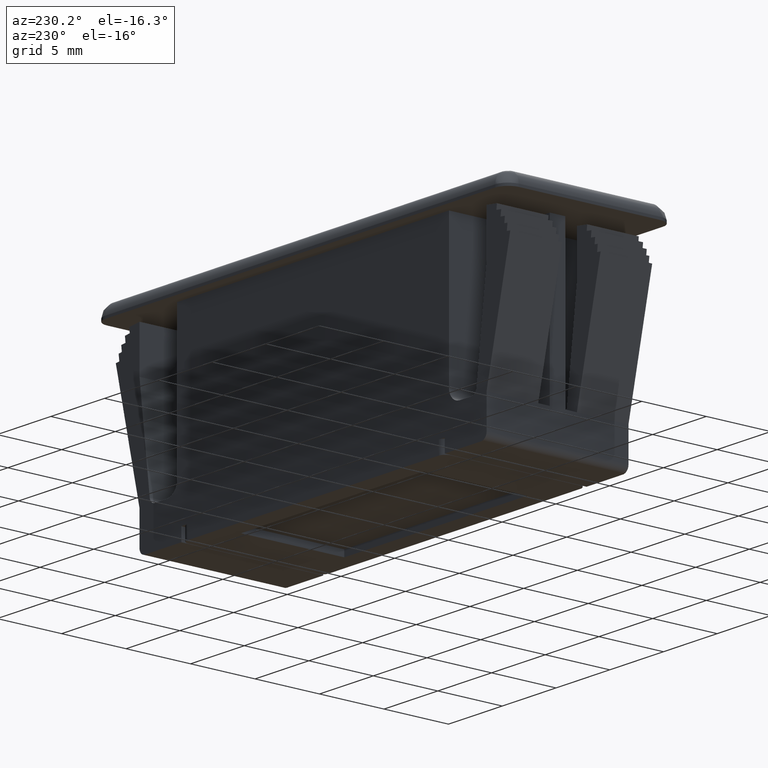
[diagram: clean part render]
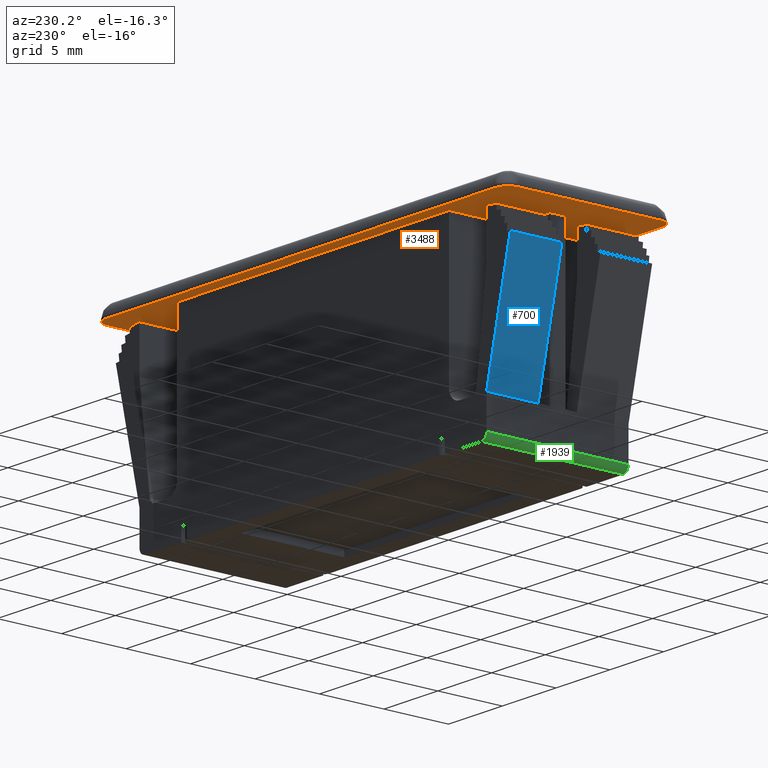
[diagram: same view with three faces highlighted in distinct colors, each labeled with its STEP entity id]
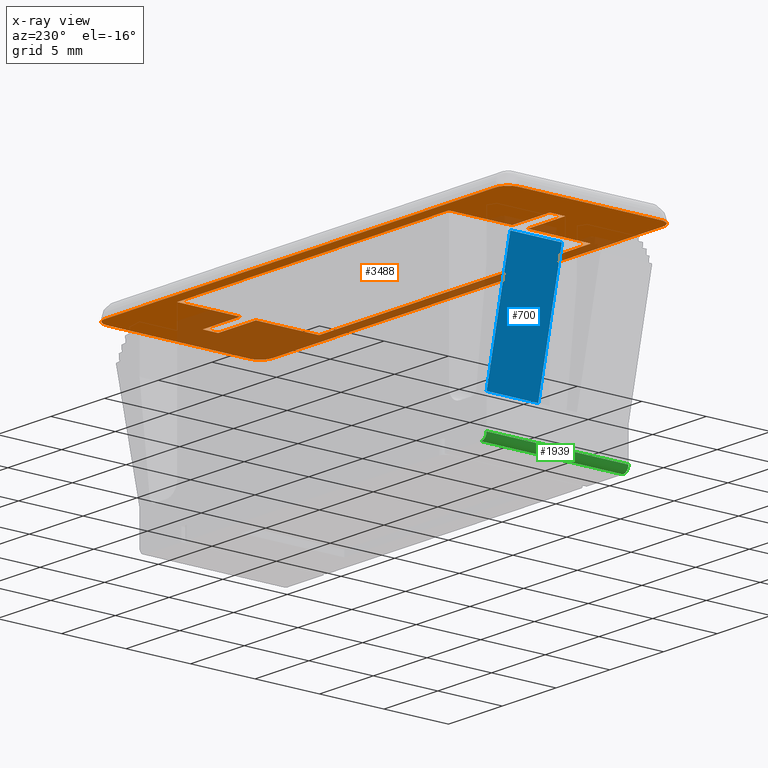
[diagram: x-ray of the same camera — body ghosted, the three highlighted faces saturated]
A machine part, auxiliary view with three faces highlighted in distinct colors.
The next image is the same camera in x-ray (body ghosted, the three faces saturated) — at least one of them is partly hidden behind the body in this view.
Their STEP definitions:

[orange] entity #3488 — the highlighted face is a freeform B-spline surface patch.
#734=CARTESIAN_POINT('',(-16.150000000000450,0.600000000000051,-1.199999999861916));
#735=VERTEX_POINT('',#734);
#743=CARTESIAN_POINT('',(-12.649999999994600,0.600000000000051,-1.199999999861916));
#744=VERTEX_POINT('',#743);
#745=CARTESIAN_POINT('',(-12.649999999994600,0.600000000000051,-1.199999999861916));
#746=CARTESIAN_POINT('',(-16.150000000000450,0.600000000000051,-1.199999999861916));
#747=QUASI_UNIFORM_CURVE('',1,(#745,#746),.UNSPECIFIED.,.F.,.U.);
#748=EDGE_CURVE('',#744,#735,#747,.T.);
#772=CARTESIAN_POINT('',(-16.150000000000450,-0.599999999999938,-1.199999999861916));
#773=VERTEX_POINT('',#772);
#786=CARTESIAN_POINT('',(-12.649999999994600,-0.599999999999938,-1.199999999861916));
#787=VERTEX_POINT('',#786);
#793=CARTESIAN_POINT('',(-12.649999999994600,-0.599999999999938,-1.199999999861916));
#794=CARTESIAN_POINT('',(-16.150000000000450,-0.599999999999938,-1.199999999861916));
#795=QUASI_UNIFORM_CURVE('',1,(#793,#794),.UNSPECIFIED.,.F.,.U.);
#796=EDGE_CURVE('',#787,#773,#795,.T.);
#960=CARTESIAN_POINT('',(16.150000000000450,0.600000000000051,-1.200000000000016));
#961=VERTEX_POINT('',#960);
#976=CARTESIAN_POINT('',(12.649999999994639,0.600000000000045,-1.200000000000016));
#977=VERTEX_POINT('',#976);
#983=CARTESIAN_POINT('',(12.649999999994639,0.600000000000045,-1.200000000000016));
#984=CARTESIAN_POINT('',(16.150000000000450,0.600000000000051,-1.200000000000016));
#985=QUASI_UNIFORM_CURVE('',1,(#983,#984),.UNSPECIFIED.,.F.,.U.);
#986=EDGE_CURVE('',#977,#961,#985,.T.);
#998=CARTESIAN_POINT('',(16.150000000000450,-0.599999999999938,-1.200000000000016));
#999=VERTEX_POINT('',#998);
#1005=CARTESIAN_POINT('',(12.649999999994639,-0.599999999999934,-1.200000000000016));
#1006=VERTEX_POINT('',#1005);
#1007=CARTESIAN_POINT('',(12.649999999994639,-0.599999999999934,-1.200000000000016));
#1008=CARTESIAN_POINT('',(16.150000000000450,-0.599999999999938,-1.200000000000016));
#1009=QUASI_UNIFORM_CURVE('',1,(#1007,#1008),.UNSPECIFIED.,.F.,.U.);
#1010=EDGE_CURVE('',#1006,#999,#1009,.T.);
#1336=CARTESIAN_POINT('',(-12.649999999994360,5.500000000000000,-1.200000000000016));
#1337=VERTEX_POINT('',#1336);
#1343=CARTESIAN_POINT('',(12.649999999994639,5.500000000000000,-1.200000000000016));
#1344=VERTEX_POINT('',#1343);
#1345=CARTESIAN_POINT('',(-12.649999999994360,5.500000000000000,-1.200000000000016));
#1346=CARTESIAN_POINT('',(12.649999999994639,5.500000000000000,-1.200000000000016));
#1347=QUASI_UNIFORM_CURVE('',1,(#1345,#1346),.UNSPECIFIED.,.F.,.U.);
#1348=EDGE_CURVE('',#1337,#1344,#1347,.T.);
#1612=CARTESIAN_POINT('',(-12.649999999994360,-5.500000000000000,-1.200000000000016));
#1613=VERTEX_POINT('',#1612);
#1866=CARTESIAN_POINT('',(12.649999999994639,-5.500000000000000,-1.200000000000016));
#1867=VERTEX_POINT('',#1866);
#1873=CARTESIAN_POINT('',(-12.649999999994360,-5.500000000000000,-1.200000000000016));
#1874=CARTESIAN_POINT('',(12.649999999994639,-5.500000000000000,-1.200000000000016));
#1875=QUASI_UNIFORM_CURVE('',1,(#1873,#1874),.UNSPECIFIED.,.F.,.U.);
#1876=EDGE_CURVE('',#1613,#1867,#1875,.T.);
#1900=CARTESIAN_POINT('',(-16.150000000000450,-0.599999999999938,-1.199999999861916));
#1901=CARTESIAN_POINT('',(-16.150000000000450,0.600000000000051,-1.199999999861916));
#1902=QUASI_UNIFORM_CURVE('',1,(#1900,#1901),.UNSPECIFIED.,.F.,.U.);
#1903=EDGE_CURVE('',#773,#735,#1902,.T.);
#2062=CARTESIAN_POINT('',(16.150000000000450,-0.599999999999938,-1.200000000000016));
#2063=CARTESIAN_POINT('',(16.150000000000450,0.600000000000051,-1.200000000000016));
#2064=QUASI_UNIFORM_CURVE('',1,(#2062,#2063),.UNSPECIFIED.,.F.,.U.);
#2065=EDGE_CURVE('',#999,#961,#2064,.T.);
#2477=CARTESIAN_POINT('',(-19.149999999999650,5.500000000000000,-1.199999999999980));
#2478=VERTEX_POINT('',#2477);
#2485=CARTESIAN_POINT('',(-18.149999999999750,6.500000000000000,-1.199999999999980));
#2486=VERTEX_POINT('',#2485);
#2492=CARTESIAN_POINT('',(-18.149999999999750,6.500000000000000,-1.199999999999980));
#2493=CARTESIAN_POINT('',(-19.149999999999750,6.500000000000001,-1.199999999999980));
#2494=CARTESIAN_POINT('',(-19.149999999999750,5.500000000000000,-1.199999999999980));
#2502=(BOUNDED_CURVE()B_SPLINE_CURVE(2,(#2492,#2493,#2494),.UNSPECIFIED.,.F.,.U.)CURVE()GEOMETRIC_REPRESENTATION_ITEM()QUASI_UNIFORM_CURVE()RATIONAL_B_SPLINE_CURVE((1.0,0.707106781186548,1.0))REPRESENTATION_ITEM(''));
#2503=EDGE_CURVE('',#2486,#2478,#2502,.T.);
#2513=CARTESIAN_POINT('',(-19.149999999999999,-5.500000000000000,-1.199999999999980));
#2514=VERTEX_POINT('',#2513);
#2522=CARTESIAN_POINT('',(-19.149999999999999,-5.500000000000000,-1.199999999999980));
#2523=CARTESIAN_POINT('',(-19.149999999999650,5.500000000000000,-1.199999999999980));
#2524=QUASI_UNIFORM_CURVE('',1,(#2522,#2523),.UNSPECIFIED.,.F.,.U.);
#2525=EDGE_CURVE('',#2514,#2478,#2524,.T.);
#2544=CARTESIAN_POINT('',(-18.149999999999999,-6.500000000000000,-1.199999999999980));
#2545=VERTEX_POINT('',#2544);
#2553=CARTESIAN_POINT('',(-19.149999999999999,-5.500000000000000,-1.199999999999980));
#2554=CARTESIAN_POINT('',(-19.150000000000006,-6.500000000000001,-1.199999999999980));
#2555=CARTESIAN_POINT('',(-18.149999999999999,-6.500000000000000,-1.199999999999980));
#2563=(BOUNDED_CURVE()B_SPLINE_CURVE(2,(#2553,#2554,#2555),.UNSPECIFIED.,.F.,.U.)CURVE()GEOMETRIC_REPRESENTATION_ITEM()QUASI_UNIFORM_CURVE()RATIONAL_B_SPLINE_CURVE((1.0,0.707106781186548,1.0))REPRESENTATION_ITEM(''));
#2564=EDGE_CURVE('',#2514,#2545,#2563,.T.);
#2574=CARTESIAN_POINT('',(18.149999999999999,-6.500000000000000,-1.199999999999980));
#2575=VERTEX_POINT('',#2574);
#2583=CARTESIAN_POINT('',(18.149999999999999,-6.500000000000000,-1.199999999999980));
#2584=CARTESIAN_POINT('',(-18.149999999999999,-6.500000000000000,-1.199999999999980));
#2585=QUASI_UNIFORM_CURVE('',1,(#2583,#2584),.UNSPECIFIED.,.F.,.U.);
#2586=EDGE_CURVE('',#2575,#2545,#2585,.T.);
#2605=CARTESIAN_POINT('',(19.149999999999999,-5.500000000000000,-1.199999999999980));
#2606=VERTEX_POINT('',#2605);
#2614=CARTESIAN_POINT('',(18.149999999999999,-6.500000000000000,-1.199999999999980));
#2615=CARTESIAN_POINT('',(19.150000000000006,-6.500000000000001,-1.199999999999980));
#2616=CARTESIAN_POINT('',(19.149999999999999,-5.500000000000000,-1.199999999999980));
#2624=(BOUNDED_CURVE()B_SPLINE_CURVE(2,(#2614,#2615,#2616),.UNSPECIFIED.,.F.,.U.)CURVE()GEOMETRIC_REPRESENTATION_ITEM()QUASI_UNIFORM_CURVE()RATIONAL_B_SPLINE_CURVE((1.0,0.707106781186548,1.0))REPRESENTATION_ITEM(''));
#2625=EDGE_CURVE('',#2575,#2606,#2624,.T.);
#2635=CARTESIAN_POINT('',(19.149999999999999,5.500000000000000,-1.199999999999980));
#2636=VERTEX_POINT('',#2635);
#2644=CARTESIAN_POINT('',(19.149999999999999,5.500000000000000,-1.199999999999980));
#2645=CARTESIAN_POINT('',(19.149999999999999,-5.500000000000000,-1.199999999999980));
#2646=QUASI_UNIFORM_CURVE('',1,(#2644,#2645),.UNSPECIFIED.,.F.,.U.);
#2647=EDGE_CURVE('',#2636,#2606,#2646,.T.);
#2666=CARTESIAN_POINT('',(18.149999999999999,6.500000000000000,-1.199999999999980));
#2667=VERTEX_POINT('',#2666);
#2675=CARTESIAN_POINT('',(19.149999999999999,5.500000000000000,-1.199999999999980));
#2676=CARTESIAN_POINT('',(19.150000000000006,6.500000000000001,-1.199999999999980));
#2677=CARTESIAN_POINT('',(18.149999999999999,6.500000000000000,-1.199999999999980));
#2685=(BOUNDED_CURVE()B_SPLINE_CURVE(2,(#2675,#2676,#2677),.UNSPECIFIED.,.F.,.U.)CURVE()GEOMETRIC_REPRESENTATION_ITEM()QUASI_UNIFORM_CURVE()RATIONAL_B_SPLINE_CURVE((1.0,0.707106781186548,1.0))REPRESENTATION_ITEM(''));
#2686=EDGE_CURVE('',#2636,#2667,#2685,.T.);
#2699=CARTESIAN_POINT('',(-18.149999999999750,6.500000000000000,-1.199999999999980));
#2700=CARTESIAN_POINT('',(18.149999999999999,6.500000000000000,-1.199999999999980));
#2701=QUASI_UNIFORM_CURVE('',1,(#2699,#2700),.UNSPECIFIED.,.F.,.U.);
#2702=EDGE_CURVE('',#2486,#2667,#2701,.T.);
#3244=CARTESIAN_POINT('',(12.649999999994639,0.600000000000045,-1.200000000000016));
#3245=CARTESIAN_POINT('',(12.649999999994639,5.500000000000000,-1.200000000000016));
#3246=QUASI_UNIFORM_CURVE('',1,(#3244,#3245),.UNSPECIFIED.,.F.,.U.);
#3247=EDGE_CURVE('',#977,#1344,#3246,.T.);
#3264=CARTESIAN_POINT('',(12.649999999994639,-5.500000000000000,-1.200000000000016));
#3265=CARTESIAN_POINT('',(12.649999999994639,-0.599999999999934,-1.200000000000016));
#3266=QUASI_UNIFORM_CURVE('',1,(#3264,#3265),.UNSPECIFIED.,.F.,.U.);
#3267=EDGE_CURVE('',#1867,#1006,#3266,.T.);
#3430=CARTESIAN_POINT('',(-12.649999999994600,0.600000000000051,-1.199999999861916));
#3431=CARTESIAN_POINT('',(-12.649999999994360,5.500000000000000,-1.200000000000016));
#3432=QUASI_UNIFORM_CURVE('',1,(#3430,#3431),.UNSPECIFIED.,.F.,.U.);
#3433=EDGE_CURVE('',#744,#1337,#3432,.T.);
#3446=CARTESIAN_POINT('',(-12.649999999994360,-5.500000000000000,-1.200000000000016));
#3447=CARTESIAN_POINT('',(-12.649999999994600,-0.599999999999938,-1.199999999861916));
#3448=QUASI_UNIFORM_CURVE('',1,(#3446,#3447),.UNSPECIFIED.,.F.,.U.);
#3449=EDGE_CURVE('',#1613,#787,#3448,.T.);
#3459=CARTESIAN_POINT('',(-21.063084925767161,7.149349974803478,-1.200000000000016));
#3460=CARTESIAN_POINT('',(21.063085953053221,7.149349974803478,-1.200000000000016));
#3461=CARTESIAN_POINT('',(-21.063084925767161,-7.149350323490650,-1.200000000000016));
#3462=CARTESIAN_POINT('',(21.063085953053221,-7.149350323490650,-1.200000000000016));
#3463=B_SPLINE_SURFACE_WITH_KNOTS('',1,1,((#3459,#3461),(#3460,#3462)),.UNSPECIFIED.,.F.,.F.,.U.,(2,2),(2,2),(0.0,42.126170878820382),(0.0,14.298700298294129),.UNSPECIFIED.);
#3464=ORIENTED_EDGE('',*,*,#2525,.T.);
#3465=ORIENTED_EDGE('',*,*,#2503,.F.);
#3466=ORIENTED_EDGE('',*,*,#2702,.T.);
#3467=ORIENTED_EDGE('',*,*,#2686,.F.);
#3468=ORIENTED_EDGE('',*,*,#2647,.T.);
#3469=ORIENTED_EDGE('',*,*,#2625,.F.);
#3470=ORIENTED_EDGE('',*,*,#2586,.T.);
#3471=ORIENTED_EDGE('',*,*,#2564,.F.);
#3472=EDGE_LOOP('',(#3464,#3465,#3466,#3467,#3468,#3469,#3470,#3471));
#3473=FACE_OUTER_BOUND('',#3472,.T.);
#3474=ORIENTED_EDGE('',*,*,#796,.F.);
#3475=ORIENTED_EDGE('',*,*,#3449,.F.);
#3476=ORIENTED_EDGE('',*,*,#1876,.T.);
#3477=ORIENTED_EDGE('',*,*,#3267,.T.);
#3478=ORIENTED_EDGE('',*,*,#1010,.T.);
#3479=ORIENTED_EDGE('',*,*,#2065,.T.);
#3480=ORIENTED_EDGE('',*,*,#986,.F.);
#3481=ORIENTED_EDGE('',*,*,#3247,.T.);
#3482=ORIENTED_EDGE('',*,*,#1348,.F.);
#3483=ORIENTED_EDGE('',*,*,#3433,.F.);
#3484=ORIENTED_EDGE('',*,*,#748,.T.);
#3485=ORIENTED_EDGE('',*,*,#1903,.F.);
#3486=EDGE_LOOP('',(#3474,#3475,#3476,#3477,#3478,#3479,#3480,#3481,#3482,#3483,#3484,#3485));
#3487=FACE_BOUND('',#3486,.T.);
#3488=ADVANCED_FACE('',(#3473,#3487),#3463,.T.);

[blue] entity #700 — the highlighted face is a freeform B-spline surface patch.
#622=CARTESIAN_POINT('',(-18.355931706625750,1.500000000000055,-3.720043686411410));
#623=VERTEX_POINT('',#622);
#624=CARTESIAN_POINT('',(-18.355931706625750,5.500000000000000,-3.720043686411400));
#625=VERTEX_POINT('',#624);
#626=CARTESIAN_POINT('',(-18.355931706625750,1.500000000000055,-3.720043686411410));
#627=CARTESIAN_POINT('',(-18.355931706625750,5.500000000000000,-3.720043686411400));
#628=QUASI_UNIFORM_CURVE('',1,(#626,#627),.UNSPECIFIED.,.F.,.U.);
#629=EDGE_CURVE('',#623,#625,#628,.T.);
#673=CARTESIAN_POINT('',(-16.039813715525550,1.300200007752834,-13.673523799403039));
#674=CARTESIAN_POINT('',(-18.466118050264051,1.300200007752834,-3.246519632653523));
#675=CARTESIAN_POINT('',(-16.039813715525550,5.699800099535582,-13.673523799403039));
#676=CARTESIAN_POINT('',(-18.466118050264051,5.699800099535582,-3.246519632653523));
#677=B_SPLINE_SURFACE_WITH_KNOTS('',1,1,((#673,#675),(#674,#676)),.UNSPECIFIED.,.F.,.F.,.U.,(2,2),(2,2),(0.0,10.705576519654731),(0.0,4.399600091782748),.UNSPECIFIED.);
#678=CARTESIAN_POINT('',(-16.149999999996300,1.500000000000055,-13.199999999917440));
#679=VERTEX_POINT('',#678);
#680=CARTESIAN_POINT('',(-16.150000000002951,5.500000000000000,-13.199999999901101));
#681=VERTEX_POINT('',#680);
#682=CARTESIAN_POINT('',(-16.149999999996300,1.500000000000055,-13.199999999917440));
#683=CARTESIAN_POINT('',(-16.150000000002951,5.500000000000000,-13.199999999901101));
#684=QUASI_UNIFORM_CURVE('',1,(#682,#683),.UNSPECIFIED.,.F.,.U.);
#685=EDGE_CURVE('',#679,#681,#684,.T.);
#686=ORIENTED_EDGE('',*,*,#685,.F.);
#687=CARTESIAN_POINT('',(-16.149999999996300,1.500000000000055,-13.199999999917440));
#688=CARTESIAN_POINT('',(-18.355931706625750,1.500000000000055,-3.720043686411410));
#689=QUASI_UNIFORM_CURVE('',1,(#687,#688),.UNSPECIFIED.,.F.,.U.);
#690=EDGE_CURVE('',#679,#623,#689,.T.);
#691=ORIENTED_EDGE('',*,*,#690,.T.);
#692=ORIENTED_EDGE('',*,*,#629,.T.);
#693=CARTESIAN_POINT('',(-16.150000000002951,5.500000000000000,-13.199999999901101));
#694=CARTESIAN_POINT('',(-18.355931706625750,5.500000000000000,-3.720043686411400));
#695=QUASI_UNIFORM_CURVE('',1,(#693,#694),.UNSPECIFIED.,.F.,.U.);
#696=EDGE_CURVE('',#681,#625,#695,.T.);
#697=ORIENTED_EDGE('',*,*,#696,.F.);
#698=EDGE_LOOP('',(#686,#691,#692,#697));
#699=FACE_OUTER_BOUND('',#698,.T.);
#700=ADVANCED_FACE('',(#699),#677,.T.);

[green] entity #1939 — the highlighted face is a freeform B-spline surface patch.
#1528=CARTESIAN_POINT('',(-15.650000000000000,5.500000000000000,-16.199999999999999));
#1529=VERTEX_POINT('',#1528);
#1535=CARTESIAN_POINT('',(-16.149999999999999,5.500000000000000,-15.699999999999999));
#1536=VERTEX_POINT('',#1535);
#1537=CARTESIAN_POINT('',(-16.149999999999999,5.500000000000000,-15.699999999999999));
#1538=CARTESIAN_POINT('',(-16.150000000000009,5.500000000000001,-16.199999999999999));
#1539=CARTESIAN_POINT('',(-15.650000000000000,5.500000000000000,-16.199999999999999));
#1547=(BOUNDED_CURVE()B_SPLINE_CURVE(2,(#1537,#1538,#1539),.UNSPECIFIED.,.F.,.U.)CURVE()GEOMETRIC_REPRESENTATION_ITEM()QUASI_UNIFORM_CURVE()RATIONAL_B_SPLINE_CURVE((1.0,0.707106781186548,1.0))REPRESENTATION_ITEM(''));
#1548=EDGE_CURVE('',#1536,#1529,#1547,.T.);
#1666=CARTESIAN_POINT('',(-16.149999999999999,-5.500000000000000,-15.699999999999999));
#1667=VERTEX_POINT('',#1666);
#1673=CARTESIAN_POINT('',(-15.650000000000000,-5.500000000000000,-16.199999999999999));
#1674=VERTEX_POINT('',#1673);
#1675=CARTESIAN_POINT('',(-16.149999999999999,-5.500000000000000,-15.699999999999999));
#1676=CARTESIAN_POINT('',(-16.150000000000009,-5.500000000000001,-16.199999999999999));
#1677=CARTESIAN_POINT('',(-15.650000000000000,-5.500000000000000,-16.199999999999999));
#1685=(BOUNDED_CURVE()B_SPLINE_CURVE(2,(#1675,#1676,#1677),.UNSPECIFIED.,.F.,.U.)CURVE()GEOMETRIC_REPRESENTATION_ITEM()QUASI_UNIFORM_CURVE()RATIONAL_B_SPLINE_CURVE((1.0,0.707106781186548,1.0))REPRESENTATION_ITEM(''));
#1686=EDGE_CURVE('',#1667,#1674,#1685,.T.);
#1887=CARTESIAN_POINT('',(-16.149999999999999,-5.500000000000000,-15.699999999999999));
#1888=CARTESIAN_POINT('',(-16.149999999999999,5.500000000000000,-15.699999999999999));
#1889=QUASI_UNIFORM_CURVE('',1,(#1887,#1888),.UNSPECIFIED.,.F.,.U.);
#1890=EDGE_CURVE('',#1667,#1536,#1889,.T.);
#1915=CARTESIAN_POINT('',(-16.149828662487781,-5.775000000000001,-15.686911525846060));
#1916=CARTESIAN_POINT('',(-16.149828662487781,5.781875000000000,-15.686911525846060));
#1917=CARTESIAN_POINT('',(-16.164246130083139,-5.775000000000001,-16.237492400277350));
#1918=CARTESIAN_POINT('',(-16.164246130083139,5.781875000000000,-16.237492400277350));
#1919=CARTESIAN_POINT('',(-15.614839962187013,-5.775000000000001,-16.198762239690399));
#1920=CARTESIAN_POINT('',(-15.614839962187013,5.781875000000000,-16.198762239690399));
#1928=(BOUNDED_SURFACE()B_SPLINE_SURFACE(1,2,((#1915,#1917,#1919),(#1916,#1918,#1920)),.UNSPECIFIED.,.F.,.F.,.U.)B_SPLINE_SURFACE_WITH_KNOTS((2,2),(3,3),(0.0,11.556875000000000),(0.0,0.994518632334191),.UNSPECIFIED.)GEOMETRIC_REPRESENTATION_ITEM()RATIONAL_B_SPLINE_SURFACE(((1.0,0.670944223154768,0.996392648609106),(1.0,0.670944223154768,0.996392648609106)))REPRESENTATION_ITEM('')SURFACE());
#1929=ORIENTED_EDGE('',*,*,#1548,.T.);
#1930=CARTESIAN_POINT('',(-15.650000000000000,-5.500000000000000,-16.199999999999999));
#1931=CARTESIAN_POINT('',(-15.650000000000000,5.500000000000000,-16.199999999999999));
#1932=QUASI_UNIFORM_CURVE('',1,(#1930,#1931),.UNSPECIFIED.,.F.,.U.);
#1933=EDGE_CURVE('',#1674,#1529,#1932,.T.);
#1934=ORIENTED_EDGE('',*,*,#1933,.F.);
#1935=ORIENTED_EDGE('',*,*,#1686,.F.);
#1936=ORIENTED_EDGE('',*,*,#1890,.T.);
#1937=EDGE_LOOP('',(#1929,#1934,#1935,#1936));
#1938=FACE_OUTER_BOUND('',#1937,.T.);
#1939=ADVANCED_FACE('',(#1938),#1928,.T.);